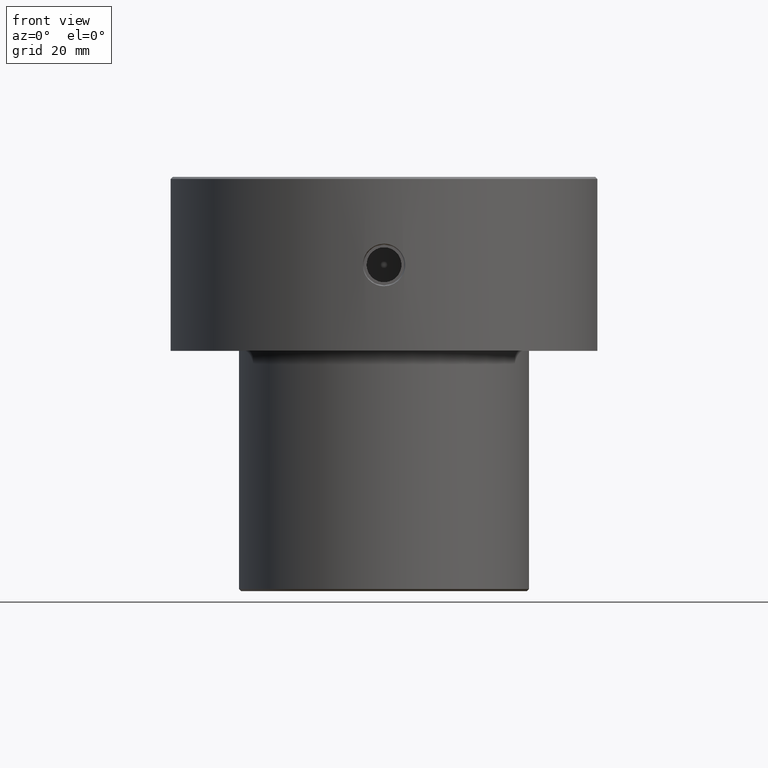
[diagram: clean part render]
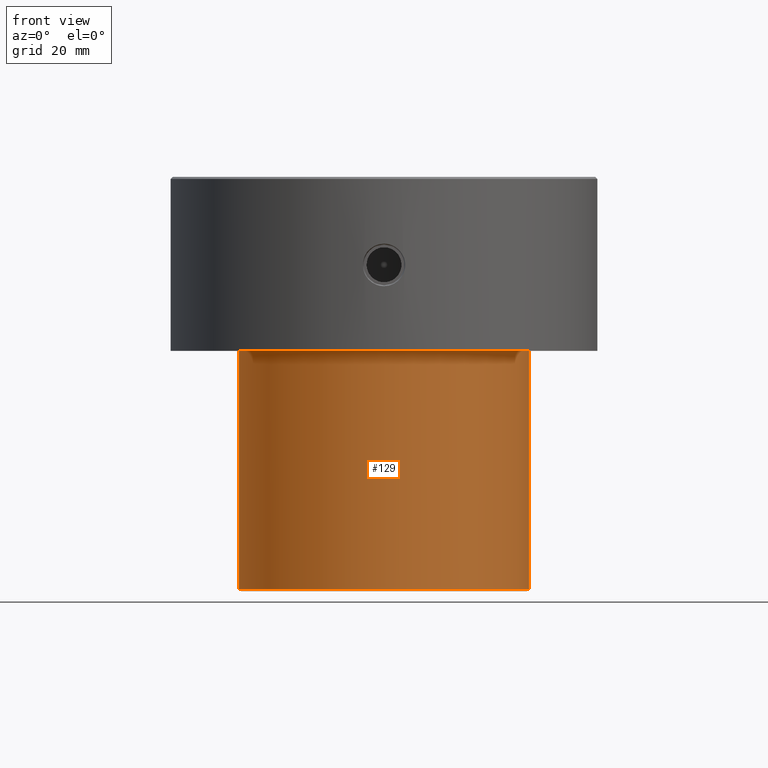
[diagram: same view with one face highlighted and labeled with its STEP entity id]
A machine part, front view. The second image highlights one B-rep face of the part: STEP entity #129.
In plain terms, the highlighted cylindrical surface (partial cylindrical patch) has radius 35 mm, axis along (-0, -0, 1).
Its self-contained STEP definition (entity closure, byte-faithful):
#34 = EDGE_CURVE ( 'NONE', #140, #205, #1220, .T. ) ;
#67 = VECTOR ( 'NONE', #592, 1000.000000000000000 ) ;
#109 = VERTEX_POINT ( 'NONE', #1094 ) ;
#129 = ADVANCED_FACE ( 'NONE', ( #1112 ), #346, .T. ) ;
#140 = VERTEX_POINT ( 'NONE', #1019 ) ;
#159 = DIRECTION ( 'NONE',  ( -1.000000000000000000, 0.000000000000000000, 0.000000000000000000 ) ) ;
#189 = CARTESIAN_POINT ( 'NONE',  ( 35.00000000000000000, 0.000000000000000000, -42.00000000000000000 ) ) ;
#205 = VERTEX_POINT ( 'NONE', #189 ) ;
#249 = DIRECTION ( 'NONE',  ( -0.000000000000000000, -0.000000000000000000, 1.000000000000000000 ) ) ;
#253 = AXIS2_PLACEMENT_3D ( 'NONE', #733, #249, #641 ) ;
#276 = VECTOR ( 'NONE', #1061, 1000.000000000000000 ) ;
#290 = AXIS2_PLACEMENT_3D ( 'NONE', #1024, #1111, #159 ) ;
#313 = AXIS2_PLACEMENT_3D ( 'NONE', #438, #720, #1101 ) ;
#320 = ORIENTED_EDGE ( 'NONE', *, *, #34, .F. ) ;
#346 = CYLINDRICAL_SURFACE ( 'NONE', #253, 35.00000000000000000 ) ;
#363 = ORIENTED_EDGE ( 'NONE', *, *, #963, .T. ) ;
#373 = EDGE_CURVE ( 'NONE', #852, #140, #681, .T. ) ;
#412 = EDGE_LOOP ( 'NONE', ( #913, #363, #674, #320 ) ) ;
#421 = CIRCLE ( 'NONE', #290, 35.00000000000000000 ) ;
#438 = CARTESIAN_POINT ( 'NONE',  ( 0.000000000000000000, 0.000000000000000000, -42.00000000000000000 ) ) ;
#592 = DIRECTION ( 'NONE',  ( -0.000000000000000000, -0.000000000000000000, 1.000000000000000000 ) ) ;
#641 = DIRECTION ( 'NONE',  ( 1.000000000000000000, 0.000000000000000000, 0.000000000000000000 ) ) ;
#674 = ORIENTED_EDGE ( 'NONE', *, *, #1227, .T. ) ;
#681 = LINE ( 'NONE', #1251, #276 ) ;
#720 = DIRECTION ( 'NONE',  ( -0.000000000000000000, -0.000000000000000000, 1.000000000000000000 ) ) ;
#733 = CARTESIAN_POINT ( 'NONE',  ( 0.000000000000000000, 0.000000000000000000, 0.000000000000000000 ) ) ;
#776 = LINE ( 'NONE', #1173, #67 ) ;
#852 = VERTEX_POINT ( 'NONE', #1068 ) ;
#913 = ORIENTED_EDGE ( 'NONE', *, *, #373, .F. ) ;
#963 = EDGE_CURVE ( 'NONE', #852, #109, #421, .T. ) ;
#1019 = CARTESIAN_POINT ( 'NONE',  ( -35.00000000000000000, 4.286263797015736496E-15, -42.00000000000000000 ) ) ;
#1024 = CARTESIAN_POINT ( 'NONE',  ( 0.000000000000000000, 0.000000000000000000, -99.50000000000004263 ) ) ;
#1061 = DIRECTION ( 'NONE',  ( -0.000000000000000000, -0.000000000000000000, 1.000000000000000000 ) ) ;
#1068 = CARTESIAN_POINT ( 'NONE',  ( -35.00000000000000000, 4.286263797015736496E-15, -99.50000000000004263 ) ) ;
#1094 = CARTESIAN_POINT ( 'NONE',  ( 35.00000000000000000, 0.000000000000000000, -99.50000000000004263 ) ) ;
#1101 = DIRECTION ( 'NONE',  ( 1.000000000000000000, 0.000000000000000000, 0.000000000000000000 ) ) ;
#1111 = DIRECTION ( 'NONE',  ( -0.000000000000000000, -0.000000000000000000, 1.000000000000000000 ) ) ;
#1112 = FACE_OUTER_BOUND ( 'NONE', #412, .T. ) ;
#1173 = CARTESIAN_POINT ( 'NONE',  ( 35.00000000000000000, 0.000000000000000000, 0.000000000000000000 ) ) ;
#1220 = CIRCLE ( 'NONE', #313, 35.00000000000000000 ) ;
#1227 = EDGE_CURVE ( 'NONE', #109, #205, #776, .T. ) ;
#1251 = CARTESIAN_POINT ( 'NONE',  ( -35.00000000000000000, 4.286263797015736496E-15, 0.000000000000000000 ) ) ;